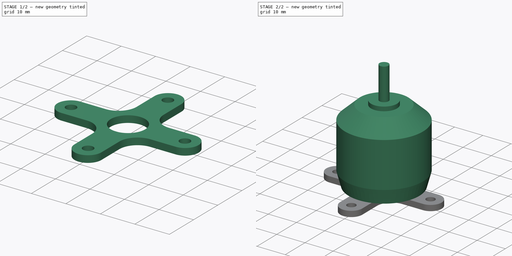
[diagram: build sequence overview — one tinted view per stage of 2, left to right]
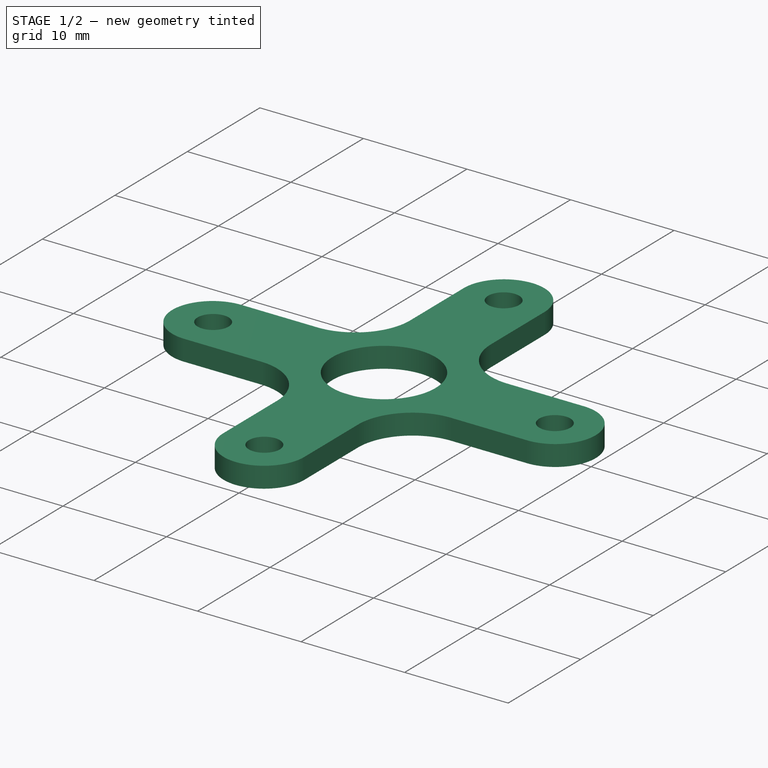
[diagram: stage 1 of 2 — iso view after this stage's code; geometry added in this stage tinted green]
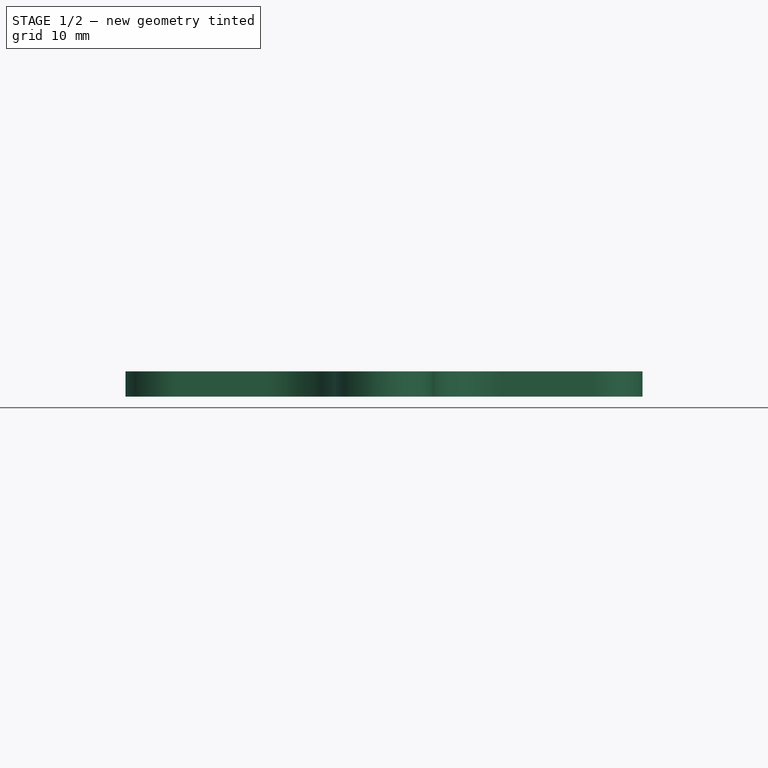
[diagram: stage 1 of 2 — front view after this stage's code; geometry added in this stage tinted green]
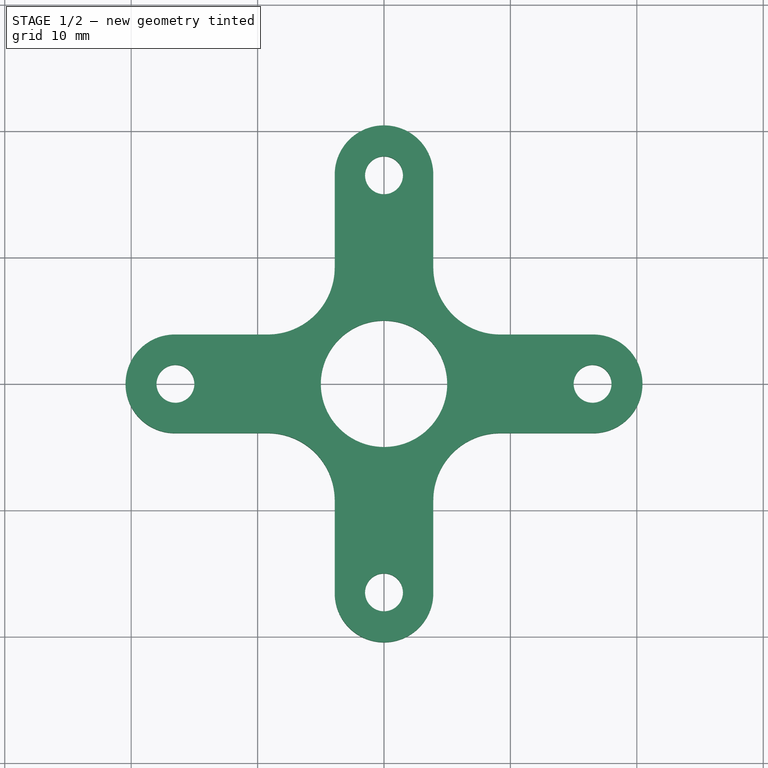
[diagram: stage 1 of 2 — top view after this stage's code; geometry added in this stage tinted green]
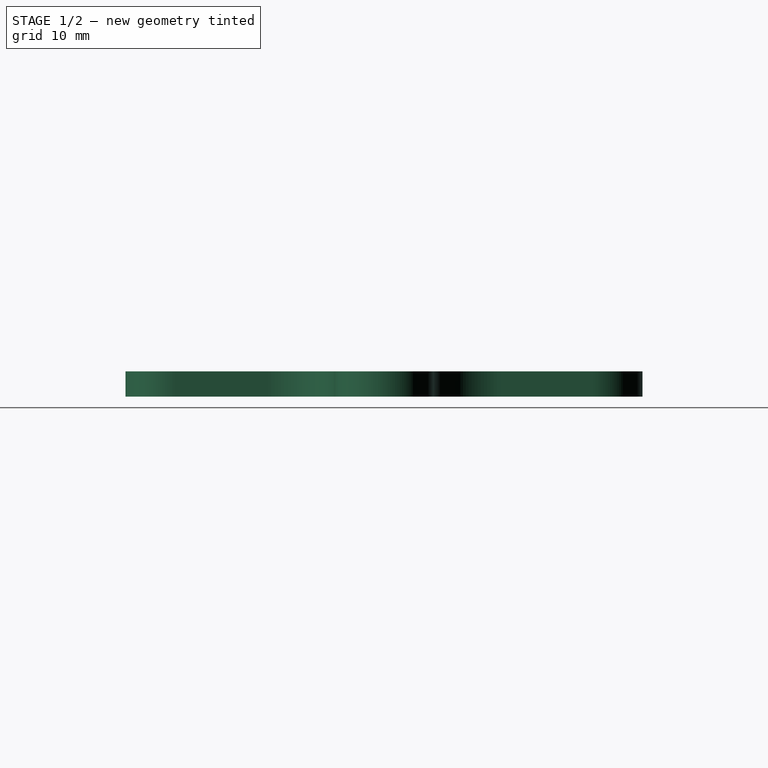
[diagram: stage 1 of 2 — right view after this stage's code; geometry added in this stage tinted green]
FCSTD DOCUMENT  (FreeCAD 0.17R13543 (Git))
Label: A2133_assembly
License: All rights reserved
LicenseURL: http://en.wikipedia.org/wiki/All_rights_reserved
objects: Sketcher::SketchObject×2, PartDesign::Body×2, App::Part×2, PartDesign::Revolution×1, PartDesign::Pad×1
note: 8 computed .brp shape members not serialized (recipe doc carries the construction recipe); baked Part::Feature solids carry a one-line shape summary decoded from their .brp

FEATURE [PartDesign::Body] Body
  Group = -> [Sketch,Revolution]
  Origin = -> Origin001
  Tip = -> Revolution
FEATURE [App::Part] Part
  Group = -> [Body]
  License = CC BY 3.0
  LicenseURL = http://creativecommons.org/licenses/by/3.0/
  Origin = -> Origin
FEATURE [Sketcher::SketchObject] Sketch001
  MapMode = 5
  Support = -> [XY_Plane003]
  expr: Constraints[59] = 41.799999999999997 / 2 - Constraints.arm_width / 2mm
  expr: Constraints[43] = Constraints.arm_width
  expr: Constraints[12] = Constraints.hold_dia
  expr: Constraints[11] = Constraints.hold_dia
  expr: Constraints[10] = Constraints.hold_dia
  sketch-geometry (40):
    g0: Circle CenterX=0 CenterY=0 CenterZ=0 NormalX=0 NormalY=0 NormalZ=1 AngleXU=0 Radius=5
    g1: Circle [constr] CenterX=0 CenterY=0 CenterZ=0 NormalX=0 NormalY=0 NormalZ=1 AngleXU=0 Radius=16.5
    g2: Circle CenterX=0 CenterY=16.5 CenterZ=0 NormalX=0 NormalY=0 NormalZ=1 AngleXU=0 Radius=1.5
    g3: Circle CenterX=16.5 CenterY=0 CenterZ=0 NormalX=0 NormalY=0 NormalZ=1 AngleXU=0 Radius=1.5
    g4: Circle CenterX=0 CenterY=-16.5 CenterZ=0 NormalX=0 NormalY=0 NormalZ=1 AngleXU=0 Radius=1.5
    g5: Circle CenterX=-16.5 CenterY=0 CenterZ=0 NormalX=0 NormalY=0 NormalZ=1 AngleXU=0 Radius=1.5
    g6: Circle [constr] CenterX=0 CenterY=0 CenterZ=0 NormalX=0 NormalY=0 NormalZ=1 AngleXU=0 Radius=17
    g7: LineSegment [constr] StartX=-16.5466 StartY=-3.9 StartZ=0 EndX=16.5466 EndY=-3.9 EndZ=0
    g8: LineSegment [constr] StartX=16.5466 StartY=-3.9 StartZ=0 EndX=16.5466 EndY=3.9 EndZ=0
    g9: LineSegment [constr] StartX=16.5466 StartY=3.9 StartZ=0 EndX=-16.5466 EndY=3.9 EndZ=0
    g10: LineSegment [constr] StartX=-16.5466 StartY=3.9 StartZ=0 EndX=-16.5466 EndY=-3.9 EndZ=0
    g11: GeomPoint X=-16.5466 Y=0 Z=0
    g12: LineSegment [constr] StartX=-3.9 StartY=-16.5466 StartZ=0 EndX=3.9 EndY=-16.5466 EndZ=0
    g13: LineSegment [constr] StartX=3.9 StartY=-16.5466 StartZ=0 EndX=3.9 EndY=16.5466 EndZ=0
    g14: LineSegment [constr] StartX=3.9 StartY=16.5466 StartZ=0 EndX=-3.9 EndY=16.5466 EndZ=0
    g15: LineSegment [constr] StartX=-3.9 StartY=16.5466 StartZ=0 EndX=-3.9 EndY=-16.5466 EndZ=0
    g16: GeomPoint X=0 Y=16.5466 Z=0
    g17: ArcOfCircle CenterX=-16.5466 CenterY=0 CenterZ=0 NormalX=0 NormalY=0 NormalZ=1 AngleXU=0 Radius=3.9 StartAngle=1.5708 EndAngle=4.71239
    g18: GeomPoint X=16.5466 Y=0 Z=0
    g19: GeomPoint X=0 Y=-16.5466 Z=0
    g20: ArcOfCircle CenterX=0 CenterY=-16.5466 CenterZ=0 NormalX=0 NormalY=0 NormalZ=1 AngleXU=0 Radius=3.9 StartAngle=3.14159 EndAngle=6.28319
    g21: ArcOfCircle CenterX=16.5466 CenterY=0 CenterZ=0 NormalX=0 NormalY=0 NormalZ=1 AngleXU=0 Radius=3.9 StartAngle=4.71239 EndAngle=7.85398
    g22: ArcOfCircle CenterX=0 CenterY=16.5466 CenterZ=0 NormalX=0 NormalY=0 NormalZ=1 AngleXU=0 Radius=3.9 StartAngle=0 EndAngle=3.14159
    g23: LineSegment StartX=16.5466 StartY=3.9 StartZ=0 EndX=9.19239 EndY=3.9 EndZ=0
    g24: LineSegment StartX=16.5466 StartY=-3.9 StartZ=0 EndX=9.19239 EndY=-3.9 EndZ=0
    g25: LineSegment StartX=3.9 StartY=-16.5466 StartZ=0 EndX=3.9 EndY=-9.19239 EndZ=0
    g26: LineSegment StartX=-3.9 StartY=-16.5466 StartZ=0 EndX=-3.9 EndY=-9.19239 EndZ=0
    g27: LineSegment StartX=-16.5466 StartY=-3.9 StartZ=0 EndX=-9.19239 EndY=-3.9 EndZ=0
    g28: LineSegment StartX=-16.5466 StartY=3.9 StartZ=0 EndX=-9.19239 EndY=3.9 EndZ=0
    g29: LineSegment StartX=-3.9 StartY=16.5466 StartZ=0 EndX=-3.9 EndY=9.19239 EndZ=0
    g30: LineSegment StartX=3.9 StartY=16.5466 StartZ=0 EndX=3.9 EndY=9.19239 EndZ=0
    g31: ArcOfCircle CenterX=9.19239 CenterY=9.19239 CenterZ=0 NormalX=0 NormalY=0 NormalZ=1 AngleXU=0 Radius=5.29239 StartAngle=3.14159 EndAngle=4.71239
    g32: ArcOfCircle CenterX=9.19239 CenterY=-9.19239 CenterZ=0 NormalX=0 NormalY=0 NormalZ=1 AngleXU=0 Radius=5.29239 StartAngle=1.5708 EndAngle=3.14159
    g33: ArcOfCircle CenterX=-9.19239 CenterY=-9.19239 CenterZ=0 NormalX=0 NormalY=0 NormalZ=1 AngleXU=0 Radius=5.29239 StartAngle=0 EndAngle=1.5708
    g34: ArcOfCircle CenterX=-9.19239 CenterY=9.19239 CenterZ=0 NormalX=0 NormalY=0 NormalZ=1 AngleXU=0 Radius=5.29239 StartAngle=4.71239 EndAngle=6.28319
    g35: Circle [constr] CenterX=0 CenterY=0 CenterZ=0 NormalX=0 NormalY=0 NormalZ=1 AngleXU=0 Radius=13
    g36: LineSegment [constr] StartX=-9.19239 StartY=9.19239 StartZ=0 EndX=9.19239 EndY=9.19239 EndZ=0
    g37: LineSegment [constr] StartX=9.19239 StartY=9.19239 StartZ=0 EndX=9.19239 EndY=-9.19239 EndZ=0
    g38: LineSegment [constr] StartX=9.19239 StartY=-9.19239 StartZ=0 EndX=-9.19239 EndY=-9.19239 EndZ=0
    g39: LineSegment [constr] StartX=-9.19239 StartY=-9.19239 StartZ=0 EndX=-9.19239 EndY=9.19239 EndZ=0
  constraints (100):
    c: Coincident(g0,g-1)
    c: Radius(g0) = 5
    c: Coincident(g1,g-1)
    c: Radius(g1) = 16.5  'mount_hole_radius'
    c: PointOnObject(g2,g1)
    c: Vertical(g2,g-1)
    c: PointOnObject(g3,g1)
    c: PointOnObject(g4,g1)
    c: PointOnObject(g5,g1)
    c: Radius(g2) = 1.5  'hold_dia'
    c: Radius(g3) = 1.5
    c: Radius(g4) = 1.5
    c: Radius(g5) = 1.5
    c: Vertical(g-1,g4)
    c: Horizontal(g3,g-1)
    c: Horizontal(g5,g-1)
    c: Coincident(g6,g-1)
    c: Coincident(g7,g8)
    c: Coincident(g8,g9)
    c: Coincident(g9,g10)
    c: Coincident(g10,g7)
    c: Horizontal(g7)
    c: Vertical(g8)
    c: Vertical(g10)
    c: PointOnObject(g7,g6)
    c: PointOnObject(g8,g6)
    c: PointOnObject(g11,g10)
    c: Symmetric(g9,g7,g11)
    c: Horizontal(g11,g-1)
    c: Coincident(g12,g13)
    c: Coincident(g13,g14)
    c: Coincident(g14,g15)
    c: Coincident(g15,g12)
    c: Horizontal(g12)
    c: Horizontal(g14)
    c: Vertical(g13)
    c: Vertical(g15)
    c: PointOnObject(g12,g6)
    c: PointOnObject(g16,g14)
    c: PointOnObject(g13,g6)
    c: Symmetric(g14,g13,g16)
    c: Vertical(g16,g-1)
    c: DistanceY(g10,g10) = 7.8  'arm_width'
    c: DistanceX(g14,g14) = 7.8
    c: Coincident(g17,g11)
    c: Coincident(g17,g7)
    c: Coincident(g17,g9)
    c: PointOnObject(g18,g8)
    c: Symmetric(g7,g8,g18)
    c: Symmetric(g12,g12,g19)
    c: Coincident(g20,g19)
    c: Coincident(g20,g12)
    c: Coincident(g20,g12)
    c: Coincident(g21,g18)
    c: Coincident(g21,g7)
    c: Coincident(g21,g8)
    c: Coincident(g22,g16)
    c: Coincident(g22,g13)
    c: Coincident(g22,g14)
    c: Radius(g6) = 17
    c: Coincident(g23,g8)
    c: Horizontal(g23)
    c: Coincident(g24,g7)
    c: Coincident(g25,g12)
    c: Vertical(g25)
    c: Coincident(g26,g12)
    c: Vertical(g26)
    c: Coincident(g27,g7)
    c: Coincident(g28,g9)
    c: Coincident(g29,g14)
    c: Vertical(g29)
    c: Coincident(g30,g13)
    c: Vertical(g30)
    c: Tangent(g23,g31) = 1.5708
    c: Tangent(g30,g31) = -1.5708
    c: Tangent(g24,g32) = -1.5708
    c: Tangent(g25,g32) = 1.5708
    c: Tangent(g26,g33) = -1.5708
    c: Tangent(g27,g33) = 1.5708
    c: Tangent(g28,g34) = -1.5708
    c: Tangent(g29,g34) = 1.5708
    c: Coincident(g35,g-1)
    c: PointOnObject(g31,g35)
    c: PointOnObject(g32,g35)
    c: PointOnObject(g33,g35)
    c: PointOnObject(g34,g35)
    c: Coincident(g36,g37)
    c: Coincident(g37,g38)
    c: Coincident(g38,g39)
    c: Coincident(g39,g36)
    c: Horizontal(g36)
    c: Horizontal(g38)
    c: Vertical(g37)
    c: Vertical(g39)
    c: Coincident(g36,g34)
    c: Coincident(g37,g32)
    c: Coincident(g31,g36)
    c: Coincident(g38,g33)
    c: Equal(g36,g37)
    c: Radius(g35) = 13
FEATURE [PartDesign::Pad] Pad
  Length = 2
  Length2 = 100
  Profile = -> Sketch001
  Reversed = true
  Type = 0
FEATURE [PartDesign::Body] Body001
  Group = -> [Sketch001,Pad]
  Origin = -> Origin003
  Tip = -> Pad
FEATURE [App::Part] Part001
  Group = -> [Body001]
  License = CC BY 3.0
  LicenseURL = http://creativecommons.org/licenses/by/3.0/
  Origin = -> Origin002
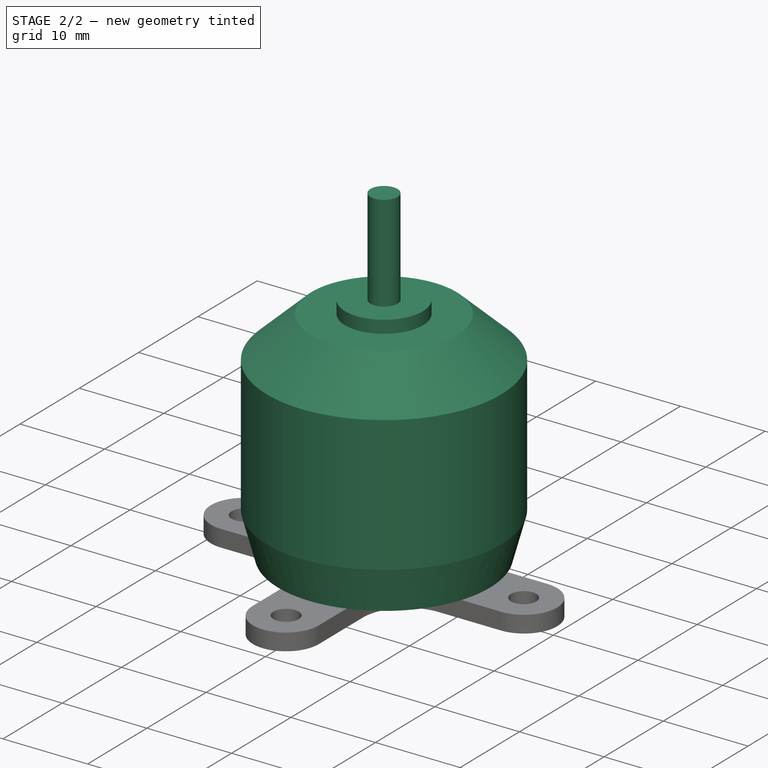
[diagram: stage 2 of 2 — iso view after this stage's code; geometry added in this stage tinted green]
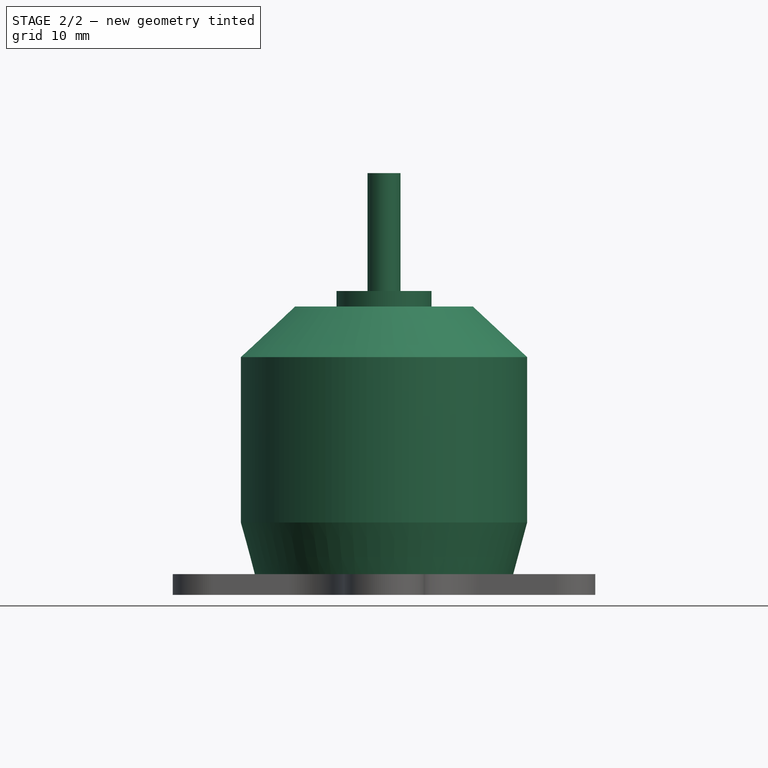
[diagram: stage 2 of 2 — front view after this stage's code; geometry added in this stage tinted green]
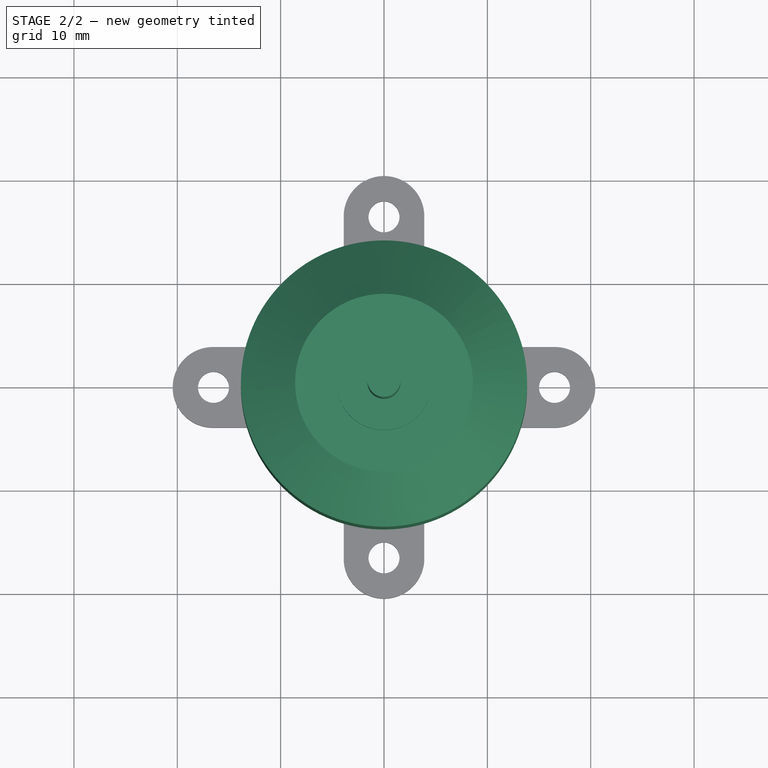
[diagram: stage 2 of 2 — top view after this stage's code; geometry added in this stage tinted green]
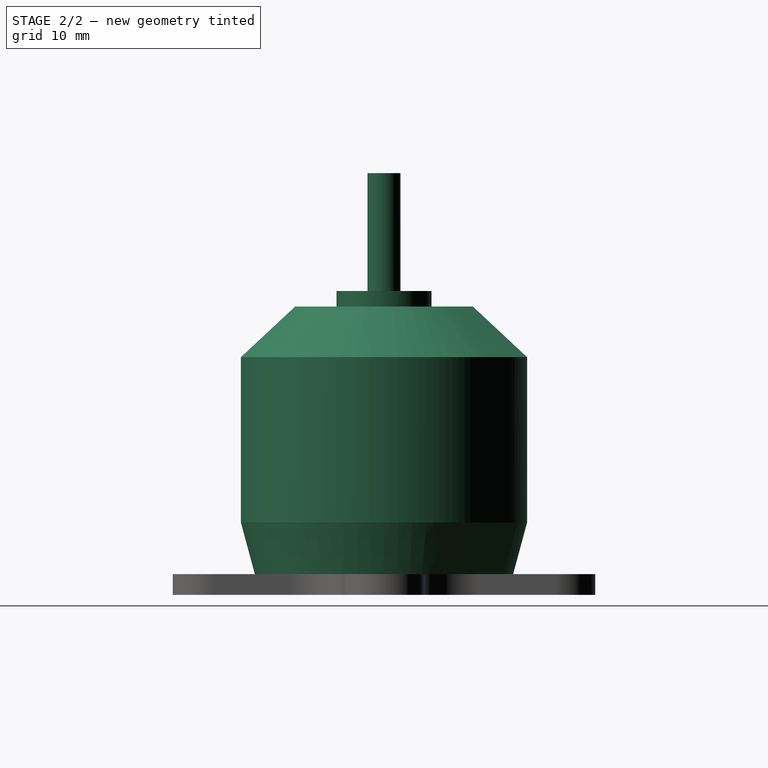
[diagram: stage 2 of 2 — right view after this stage's code; geometry added in this stage tinted green]
FEATURE [Sketcher::SketchObject] Sketch
  MapMode = 5
  Placement = pos=(0,0,0) rot=(1,0,0;1.5708rad)
  Support = -> [XZ_Plane001]
  sketch-geometry (10):
    g0: LineSegment StartX=0 StartY=0 StartZ=0 EndX=0 EndY=38.8 EndZ=0
    g1: LineSegment StartX=0 StartY=38.8 StartZ=0 EndX=1.6 EndY=38.8 EndZ=0
    g2: LineSegment StartX=1.6 StartY=38.8 StartZ=0 EndX=1.6 EndY=27.4 EndZ=0
    g3: LineSegment StartX=1.6 StartY=27.4 StartZ=0 EndX=4.6 EndY=27.4 EndZ=0
    g4: LineSegment StartX=4.6 StartY=27.4 StartZ=0 EndX=4.6 EndY=25.9 EndZ=0
    g5: LineSegment StartX=4.6 StartY=25.9 StartZ=0 EndX=8.6 EndY=25.9 EndZ=0
    g6: LineSegment StartX=8.6 StartY=25.9 StartZ=0 EndX=13.85 EndY=21 EndZ=0
    g7: LineSegment StartX=13.85 StartY=21 StartZ=0 EndX=13.85 EndY=5 EndZ=0
    g8: LineSegment StartX=13.85 StartY=5 StartZ=0 EndX=12.5 EndY=0 EndZ=0
    g9: LineSegment StartX=12.5 StartY=0 StartZ=0 EndX=0 EndY=0 EndZ=0
  constraints (30):
    c: Coincident(g0,g-1)
    c: PointOnObject(g0,g-2)
    c: Coincident(g1,g0)
    c: Horizontal(g1)
    c: Coincident(g2,g1)
    c: Vertical(g2)
    c: Coincident(g3,g2)
    c: Horizontal(g3)
    c: Coincident(g4,g3)
    c: Vertical(g4)
    c: Coincident(g5,g4)
    c: Horizontal(g5)
    c: Coincident(g6,g5)
    c: Coincident(g7,g6)
    c: Vertical(g7)
    c: Coincident(g8,g7)
    c: PointOnObject(g8,g-1)
    c: Coincident(g9,g8)
    c: Horizontal(g9)
    c: DistanceX(g-1,g7) = 13.85
    c: DistanceX(g-1,g8) = 12.5
    c: DistanceY(g8,g7) = 5
    c: DistanceY(g-1,g0) = 38.8
    c: DistanceY(g2,g1) = 11.4
    c: DistanceY(g4,g3) = 1.5
    c: DistanceX(g4,g5) = 4
    c: DistanceY(g7,g6) = 16
    c: DistanceX(g0,g1) = 1.6
    c: DistanceX(g2,g3) = 3
    c: Coincident(g9,g-1)
FEATURE [PartDesign::Revolution] Revolution
  Angle = 360
  Axis = (0,0,1)
  Base = (0,0,0)
  Placement = pos=(0,0,0) rot=(1,0,0;1.5708rad)
  Profile = -> Sketch
  ReferenceAxis = -> Sketch [V_Axis]
  Reversed = true
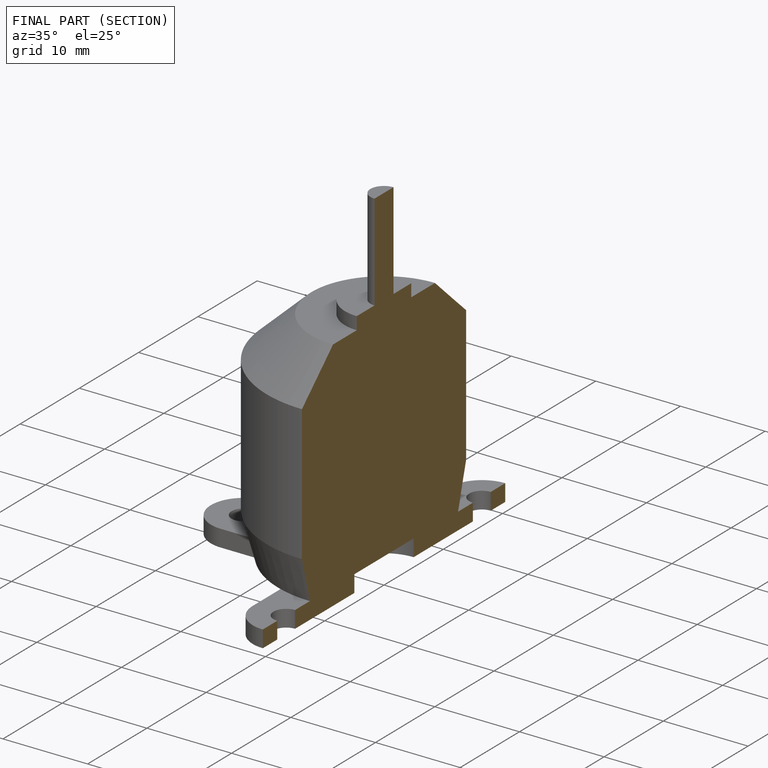
[diagram: finished part — half-section view (interior)]
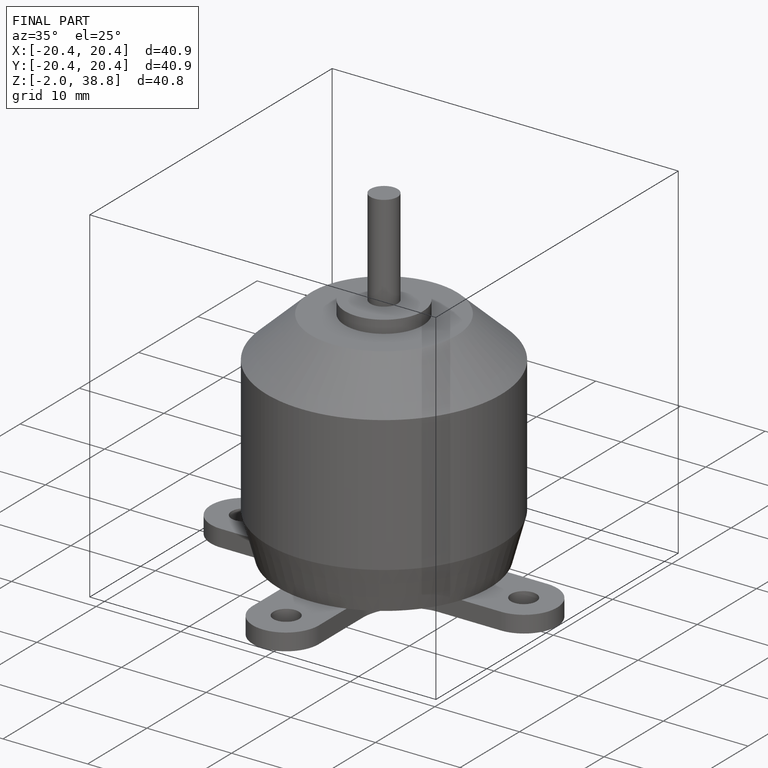
[diagram: finished part — iso view with bounding-box wireframe]
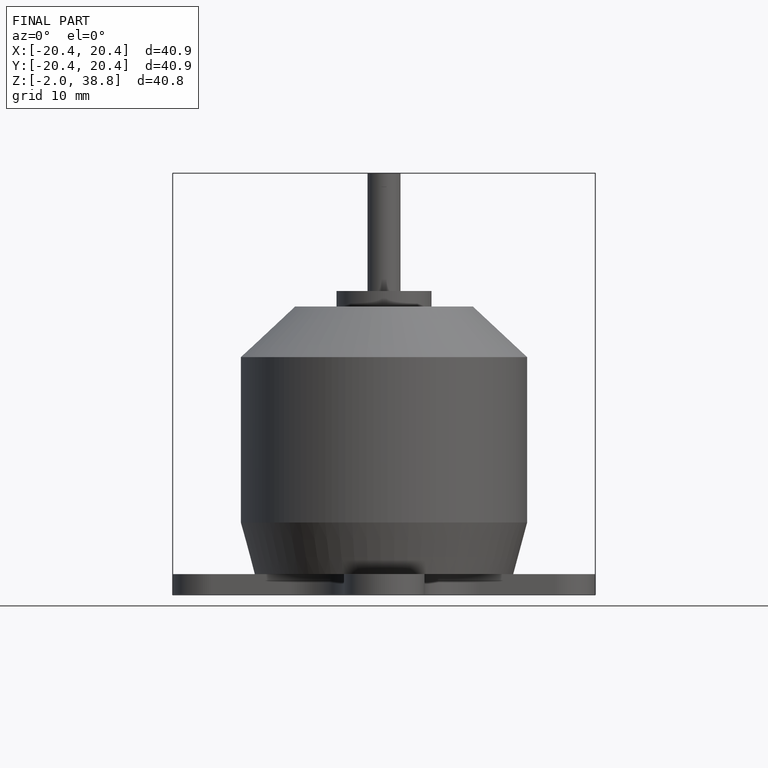
[diagram: finished part — front view with bounding-box wireframe]
